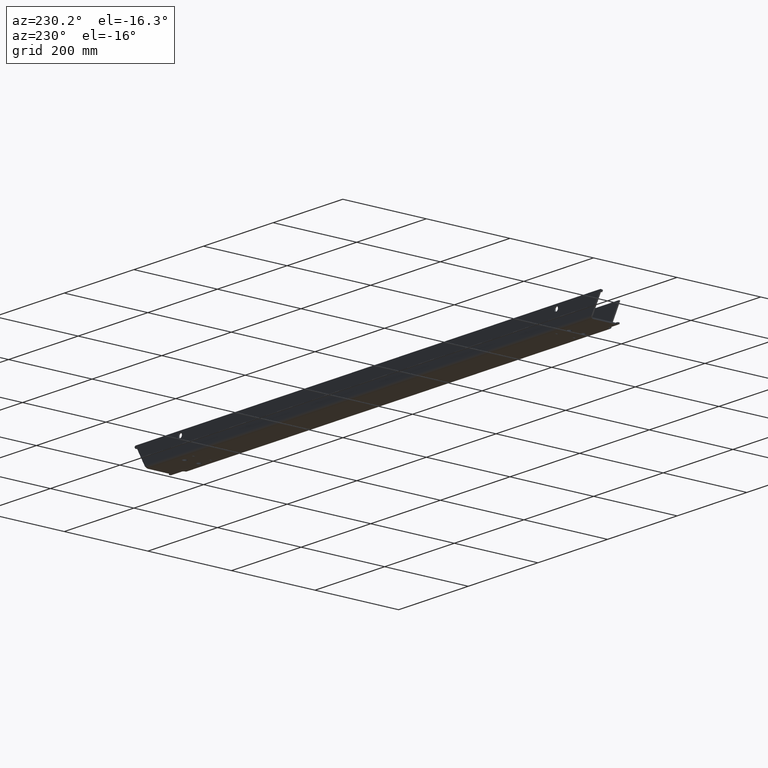
[diagram: clean part render]
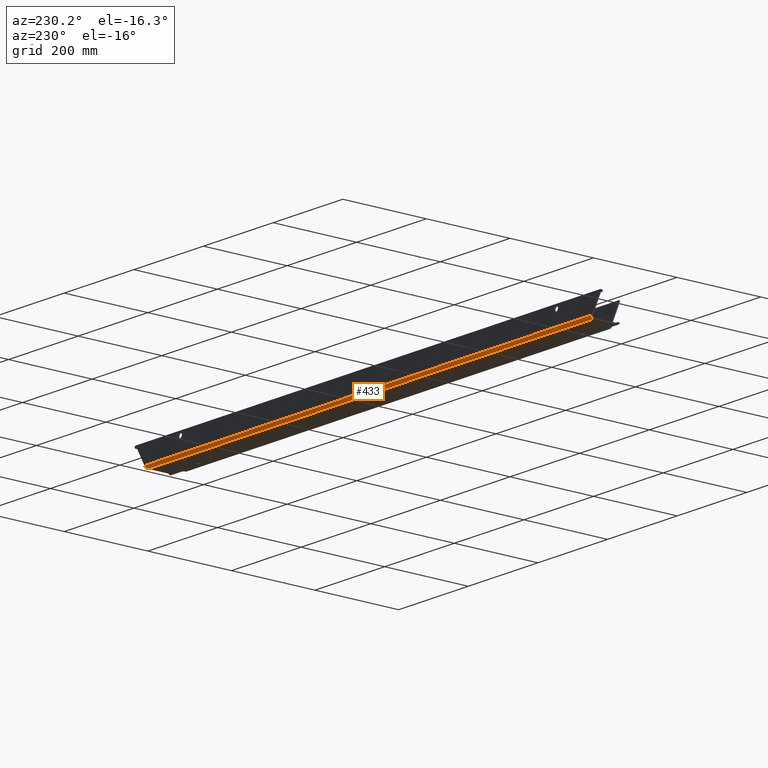
[diagram: same view with one face highlighted and labeled with its STEP entity id]
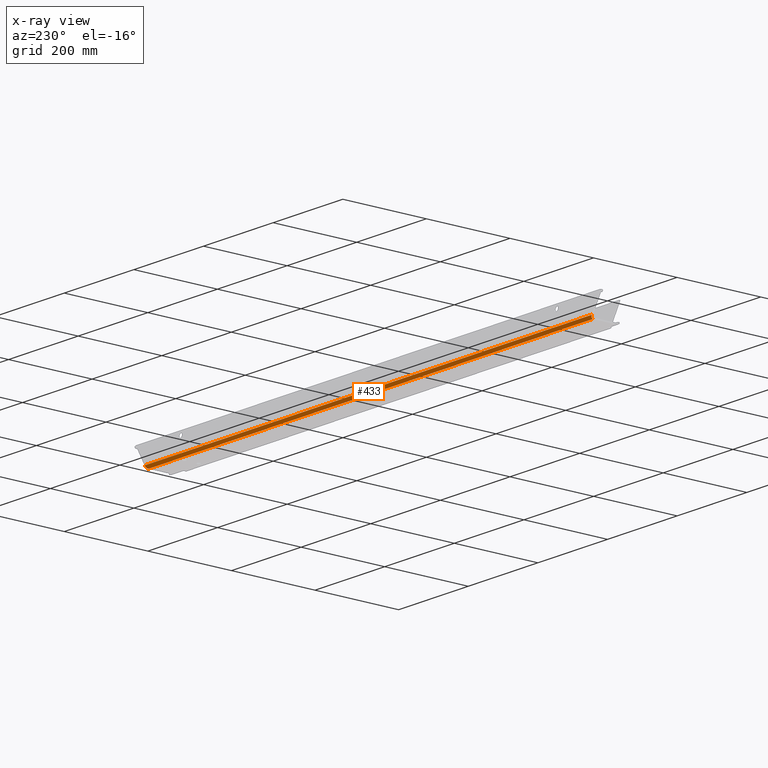
[diagram: x-ray of the same camera — body ghosted, the highlighted face saturated]
A machine part, auxiliary view. The second image highlights one B-rep face of the part: STEP entity #433.
The next image is the same camera in x-ray: the body ghosted, the highlighted face saturated — about 0% of this face is hidden behind the body in this view.
In plain terms, the highlighted cylindrical surface (edge-blend (fillet) strip) has radius 6 mm, axis along (1, -0, 0).
Its self-contained STEP definition (entity closure, byte-faithful):
#60 = VERTEX_POINT ( 'NONE', #2172 ) ;
#66 = ORIENTED_EDGE ( 'NONE', *, *, #1349, .T. ) ;
#107 = DIRECTION ( 'NONE',  ( 0.000000000000000000, 0.000000000000000000, -1.000000000000000000 ) ) ;
#113 = ORIENTED_EDGE ( 'NONE', *, *, #2478, .F. ) ;
#228 = EDGE_CURVE ( 'NONE', #1568, #60, #2157, .T. ) ;
#230 = CARTESIAN_POINT ( 'NONE',  ( -639.6842112538253105, -1095.950963427387705, -1259.102159021868374 ) ) ;
#250 = CARTESIAN_POINT ( 'NONE',  ( 639.6516604487195536, -1095.928971235466179, -1259.142785954654073 ) ) ;
#257 = CARTESIAN_POINT ( 'NONE',  ( -639.3277449709304392, -1096.913420052662104, -1259.773130437859891 ) ) ;
#374 = CARTESIAN_POINT ( 'NONE',  ( -639.7876867025532874, -1095.740122200538281, -1258.914012409938323 ) ) ;
#383 = CARTESIAN_POINT ( 'NONE',  ( 639.9959833215229992, -1095.373876811286891, -1258.545149206518772 ) ) ;
#433 = ADVANCED_FACE ( 'NONE', ( #2624 ), #1202, .T. ) ;
#443 = CARTESIAN_POINT ( 'NONE',  ( -642.3315082370257869, -1093.805262667903662, -1254.499999999999545 ) ) ;
#448 = EDGE_CURVE ( 'NONE', #2145, #60, #2425, .T. ) ;
#449 = AXIS2_PLACEMENT_3D ( 'NONE', #2020, #2639, #107 ) ;
#494 = VERTEX_POINT ( 'NONE', #1474 ) ;
#499 = CARTESIAN_POINT ( 'NONE',  ( 639.3986631695357801, -1096.577536634094031, -1259.624210347255939 ) ) ;
#572 = CARTESIAN_POINT ( 'NONE',  ( -1284.683459398313516, -1099.805262667903662, -1260.499999999999773 ) ) ;
#577 = CARTESIAN_POINT ( 'NONE',  ( 642.3315082370262417, -1093.805262667903662, -1254.499999999999318 ) ) ;
#594 = CARTESIAN_POINT ( 'NONE',  ( 641.2857134628283120, -1094.076216449996309, -1256.336351408089740 ) ) ;
#596 = ORIENTED_EDGE ( 'NONE', *, *, #448, .F. ) ;
#635 = CARTESIAN_POINT ( 'NONE',  ( 642.0405440171596183, -1093.805262667903435, -1255.006886144664804 ) ) ;
#639 = CARTESIAN_POINT ( 'NONE',  ( -639.9632632876690650, -1095.426465320914531, -1258.601974032710814 ) ) ;
#653 = CARTESIAN_POINT ( 'NONE',  ( -639.9708822066598941, -1095.414041497376274, -1258.588664798574428 ) ) ;
#724 = EDGE_LOOP ( 'NONE', ( #1845, #596, #66, #113 ) ) ;
#779 = DIRECTION ( 'NONE',  ( -1.000000000000000000, 0.000000000000000000, -0.000000000000000000 ) ) ;
#789 = CARTESIAN_POINT ( 'NONE',  ( 639.9789356573941177, -1095.401038882238481, -1258.574658027309397 ) ) ;
#806 = CARTESIAN_POINT ( 'NONE',  ( -639.4350799628253981, -1096.568898347064533, -1259.567203449156295 ) ) ;
#846 = CARTESIAN_POINT ( 'NONE',  ( 642.3315082370262417, -1093.805262667903662, -1254.499999999999318 ) ) ;
#858 = CARTESIAN_POINT ( 'NONE',  ( 640.2757207799033949, -1094.980121152608490, -1258.069558050467322 ) ) ;
#893 = CARTESIAN_POINT ( 'NONE',  ( -639.0516884048598740, -1098.031611273660246, -1260.290405342958820 ) ) ;
#929 = CARTESIAN_POINT ( 'NONE',  ( 638.8674066218876533, -1099.805262667903662, -1260.499999999999773 ) ) ;
#993 = CARTESIAN_POINT ( 'NONE',  ( 640.0827775422187642, -1095.242027477320335, -1258.396287835058502 ) ) ;
#1046 = VECTOR ( 'NONE', #779, 1000.000000000000000 ) ;
#1055 = CARTESIAN_POINT ( 'NONE',  ( -639.6190566554745374, -1096.099552675053246, -1259.222855561201641 ) ) ;
#1068 = CARTESIAN_POINT ( 'NONE',  ( -639.9054089992268928, -1095.523505972098746, -1258.703601406078860 ) ) ;
#1080 = CARTESIAN_POINT ( 'NONE',  ( -639.8408603147174745, -1095.637708503840258, -1258.818162487116979 ) ) ;
#1096 = CARTESIAN_POINT ( 'NONE',  ( -640.6532063764839222, -1094.558293471711750, -1257.434233752729597 ) ) ;
#1202 = CYLINDRICAL_SURFACE ( 'NONE', #449, 6.000000000000005329 ) ;
#1209 = CARTESIAN_POINT ( 'NONE',  ( 640.4996553202204268, -1094.714871999544584, -1257.691060030240351 ) ) ;
#1218 = CARTESIAN_POINT ( 'NONE',  ( -638.8674066218875396, -1099.805262667903662, -1260.499999999999773 ) ) ;
#1258 = CARTESIAN_POINT ( 'NONE',  ( -638.8674066218875396, -1099.805262667903662, -1260.499999999999773 ) ) ;
#1272 = CARTESIAN_POINT ( 'NONE',  ( -639.9668474539867020, -1095.420612382527224, -1258.595711175788210 ) ) ;
#1279 = CARTESIAN_POINT ( 'NONE',  ( 640.2069790383942518, -1095.068618837399981, -1258.185527273617708 ) ) ;
#1285 = VECTOR ( 'NONE', #1624, 1000.000000000000000 ) ;
#1349 = EDGE_CURVE ( 'NONE', #2145, #494, #1358, .T. ) ;
#1358 = B_SPLINE_CURVE_WITH_KNOTS ( 'NONE', 3,
 ( #1258, #2306, #893, #257, #806, #1055, #230, #374, #1080, #1068, #1688, #1503, #639, #1272, #1677, #653, #1477, #1834, #2435, #1096, #2506, #1461, #1490, #1918, #443 ),
 .UNSPECIFIED., .F., .F.,
 ( 4, 2, 2, 2, 1, 1, 1, 1, 1, 2, 2, 2, 2, 2, 4 ),
 ( 0.000000000000000000, 0.2499999999959099384, 0.3749999999938456452, 0.4374999999928589345, 0.4687499999923256389, 0.4843749999920884952, 0.4921874999919699234, 0.4960937499919329530, 0.4980468749919144678, 0.4990234374919051974, 0.4999999999918959270, 0.6249999999939219730, 0.7499999999959480190, 0.8749999999979740650, 1.000000000000000000 ),
 .UNSPECIFIED. ) ;
#1375 = LINE ( 'NONE', #1606, #1046 ) ;
#1461 = CARTESIAN_POINT ( 'NONE',  ( -641.2683175396875868, -1094.087280413754343, -1256.372153381671069 ) ) ;
#1474 = CARTESIAN_POINT ( 'NONE',  ( -642.3315082370257869, -1093.805262667903662, -1254.499999999999545 ) ) ;
#1477 = CARTESIAN_POINT ( 'NONE',  ( -640.0677198634496108, -1095.256752070015409, -1258.419635063671649 ) ) ;
#1490 = CARTESIAN_POINT ( 'NONE',  ( -641.7621994001219718, -1093.872816437288748, -1255.503175490197009 ) ) ;
#1503 = CARTESIAN_POINT ( 'NONE',  ( -639.9549198642062038, -1095.440163385648702, -1258.616568637943146 ) ) ;
#1542 = CARTESIAN_POINT ( 'NONE',  ( 639.9745903457665008, -1095.408026192922762, -1258.582195518336448 ) ) ;
#1568 = VERTEX_POINT ( 'NONE', #577 ) ;
#1606 = CARTESIAN_POINT ( 'NONE',  ( -1284.683459398313516, -1093.805262667903662, -1254.499999999999318 ) ) ;
#1624 = DIRECTION ( 'NONE',  ( 1.000000000000000000, -0.000000000000000000, 0.000000000000000000 ) ) ;
#1677 = CARTESIAN_POINT ( 'NONE',  ( -639.9692387678443311, -1095.416714347884408, -1258.591534162557991 ) ) ;
#1688 = CARTESIAN_POINT ( 'NONE',  ( -639.9383115423944446, -1095.467724375333546, -1258.645682239847929 ) ) ;
#1713 = CARTESIAN_POINT ( 'NONE',  ( 638.9143756571774020, -1098.923482970862096, -1260.499999999999773 ) ) ;
#1813 = CARTESIAN_POINT ( 'NONE',  ( 640.0400758939821344, -1095.305747397342429, -1258.469307988118317 ) ) ;
#1834 = CARTESIAN_POINT ( 'NONE',  ( -640.1889491662184355, -1095.085058307234476, -1258.216291211817406 ) ) ;
#1845 = ORIENTED_EDGE ( 'NONE', *, *, #228, .T. ) ;
#1918 = CARTESIAN_POINT ( 'NONE',  ( -642.0342826558290881, -1093.805262667903889, -1255.020333761135362 ) ) ;
#2020 = CARTESIAN_POINT ( 'NONE',  ( -1284.683459398313516, -1099.805262667903662, -1254.499999999999773 ) ) ;
#2026 = CARTESIAN_POINT ( 'NONE',  ( 640.0192784859823405, -1095.337391597009400, -1258.504975755045962 ) ) ;
#2145 = VERTEX_POINT ( 'NONE', #1218 ) ;
#2150 = CARTESIAN_POINT ( 'NONE',  ( 639.0300207737647042, -1098.074706437728537, -1260.303526700762177 ) ) ;
#2157 = B_SPLINE_CURVE_WITH_KNOTS ( 'NONE', 3,
 ( #846, #635, #2287, #594, #2243, #2417, #1209, #858, #1279, #2303, #993, #1813, #2026, #383, #2631, #789, #2431, #2313, #1542, #250, #499, #2150, #1713, #929 ),
 .UNSPECIFIED., .F., .F.,
 ( 4, 2, 2, 2, 2, 2, 1, 1, 1, 1, 2, 2, 2, 4 ),
 ( 0.000000000000000000, 0.1249999999955945240, 0.2499999999911890480, 0.3749999999867835720, 0.4374999999845212151, 0.4687499999833960040, 0.4843749999828672048, 0.4921874999826028607, 0.4960937499825130992, 0.4980468749824681907, 0.4990234374825244790, 0.4999999999825807118, 0.7499999999912903004, 1.000000000000000000 ),
 .UNSPECIFIED. ) ;
#2172 = CARTESIAN_POINT ( 'NONE',  ( 638.8674066218876533, -1099.805262667903662, -1260.499999999999773 ) ) ;
#2243 = CARTESIAN_POINT ( 'NONE',  ( 641.0655865061228269, -1094.218693371236668, -1256.720451108281850 ) ) ;
#2287 = CARTESIAN_POINT ( 'NONE',  ( 641.7731922183470488, -1093.869409442444521, -1255.479695639837701 ) ) ;
#2303 = CARTESIAN_POINT ( 'NONE',  ( 640.1127210840260204, -1095.198971052779370, -1258.345361370774299 ) ) ;
#2306 = CARTESIAN_POINT ( 'NONE',  ( -638.9289152402977834, -1098.893494176226568, -1260.499999999999318 ) ) ;
#2313 = CARTESIAN_POINT ( 'NONE',  ( 639.9749300136935517, -1095.407479848817275, -1258.581606284556074 ) ) ;
#2417 = CARTESIAN_POINT ( 'NONE',  ( 640.6725574348188275, -1094.538047411404705, -1257.397689264300425 ) ) ;
#2425 = LINE ( 'NONE', #572, #1285 ) ;
#2431 = CARTESIAN_POINT ( 'NONE',  ( 639.9765305417485024, -1095.404904323393112, -1258.578829492130353 ) ) ;
#2435 = CARTESIAN_POINT ( 'NONE',  ( -640.4816924227355912, -1094.735849943829635, -1257.723694186877765 ) ) ;
#2478 = EDGE_CURVE ( 'NONE', #1568, #494, #1375, .T. ) ;
#2506 = CARTESIAN_POINT ( 'NONE',  ( -641.0465189349600905, -1094.233985431040537, -1256.758602092325418 ) ) ;
#2624 = FACE_OUTER_BOUND ( 'NONE', #724, .T. ) ;
#2631 = CARTESIAN_POINT ( 'NONE',  ( 639.9845778588452276, -1095.392004549122703, -1258.564880607165605 ) ) ;
#2639 = DIRECTION ( 'NONE',  ( 1.000000000000000000, -0.000000000000000000, 0.000000000000000000 ) ) ;